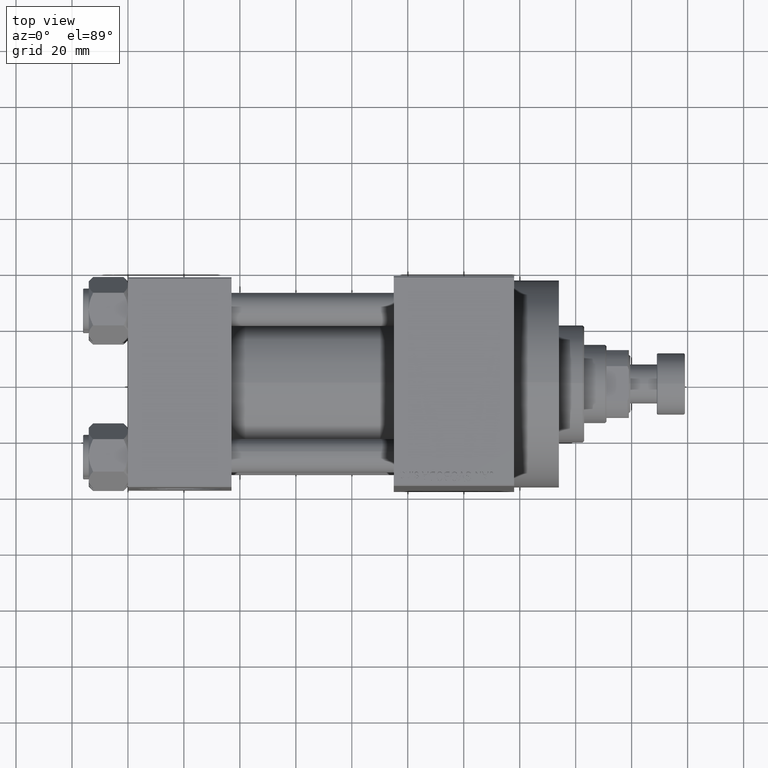
[diagram: clean part render]
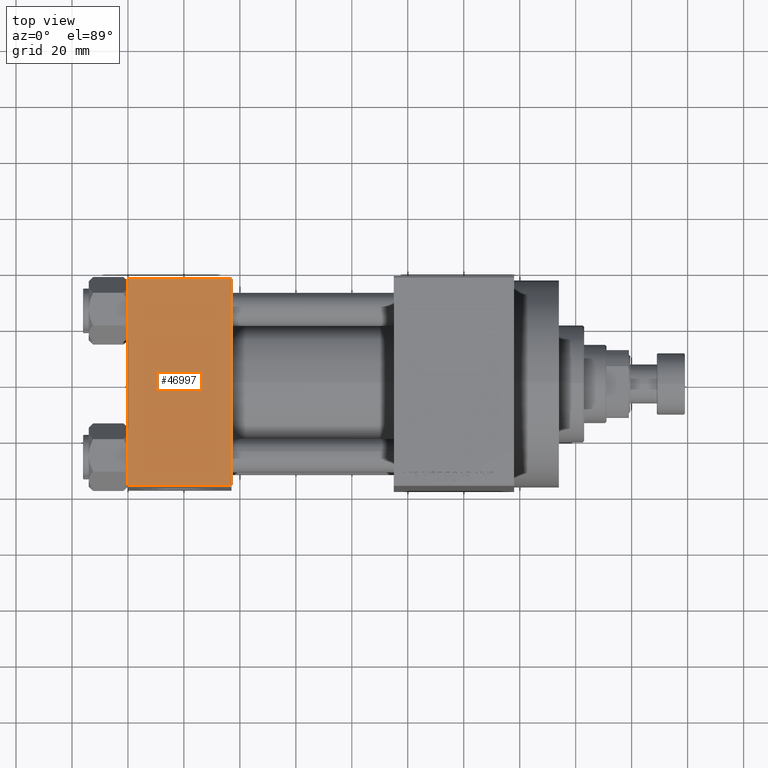
[diagram: same view with one face highlighted and labeled with its STEP entity id]
A machine part, top view. The second image highlights one B-rep face of the part: STEP entity #46997.
In plain terms, the highlighted planar face has unit normal (0, 0, -1).
Its self-contained STEP definition (entity closure, byte-faithful):
#973 = LINE ( 'NONE', #41890, #2271 ) ;
#2167 = VERTEX_POINT ( 'NONE', #7706 ) ;
#2271 = VECTOR ( 'NONE', #8000, 1000.000000000000000 ) ;
#2347 = CARTESIAN_POINT ( 'NONE',  ( 37.00000000000000000, -37.00000000000000711, 37.49999999999999289 ) ) ;
#3123 = DIRECTION ( 'NONE',  ( 0.000000000000000000, 9.251858538542971581E-17, -1.000000000000000000 ) ) ;
#3611 = VECTOR ( 'NONE', #45710, 1000.000000000000000 ) ;
#4763 = CARTESIAN_POINT ( 'NONE',  ( 37.00000000000000000, 37.49999999999999289, 37.50000000000000000 ) ) ;
#7706 = CARTESIAN_POINT ( 'NONE',  ( 0.000000000000000000, -37.00000000000000711, 37.49999999999999289 ) ) ;
#8000 = DIRECTION ( 'NONE',  ( 1.000000000000000000, 0.000000000000000000, 0.000000000000000000 ) ) ;
#9781 = CARTESIAN_POINT ( 'NONE',  ( 37.00000000000000000, 36.99999999999999289, 37.50000000000000000 ) ) ;
#10885 = AXIS2_PLACEMENT_3D ( 'NONE', #36292, #3123, #35583 ) ;
#14162 = VECTOR ( 'NONE', #23401, 1000.000000000000000 ) ;
#17878 = PLANE ( 'NONE',  #10885 ) ;
#18285 = EDGE_CURVE ( 'NONE', #2167, #19923, #973, .T. ) ;
#19673 = ORIENTED_EDGE ( 'NONE', *, *, #18285, .T. ) ;
#19923 = VERTEX_POINT ( 'NONE', #2347 ) ;
#20011 = CARTESIAN_POINT ( 'NONE',  ( 0.000000000000000000, 37.49999999999999289, 37.50000000000000000 ) ) ;
#20737 = EDGE_LOOP ( 'NONE', ( #30349, #19673, #39406, #42934 ) ) ;
#23401 = DIRECTION ( 'NONE',  ( 0.000000000000000000, -1.000000000000000000, -9.251858538542971581E-17 ) ) ;
#23417 = LINE ( 'NONE', #20011, #3611 ) ;
#24266 = LINE ( 'NONE', #35656, #25776 ) ;
#25776 = VECTOR ( 'NONE', #31784, 1000.000000000000000 ) ;
#27071 = VERTEX_POINT ( 'NONE', #9781 ) ;
#27843 = EDGE_CURVE ( 'NONE', #27071, #19923, #34546, .T. ) ;
#28289 = EDGE_CURVE ( 'NONE', #27071, #34639, #24266, .T. ) ;
#30349 = ORIENTED_EDGE ( 'NONE', *, *, #33573, .T. ) ;
#31784 = DIRECTION ( 'NONE',  ( -1.000000000000000000, 0.000000000000000000, 0.000000000000000000 ) ) ;
#33573 = EDGE_CURVE ( 'NONE', #34639, #2167, #23417, .T. ) ;
#34546 = LINE ( 'NONE', #4763, #14162 ) ;
#34639 = VERTEX_POINT ( 'NONE', #38916 ) ;
#35583 = DIRECTION ( 'NONE',  ( 0.000000000000000000, 1.000000000000000000, 9.251858538542971581E-17 ) ) ;
#35656 = CARTESIAN_POINT ( 'NONE',  ( 0.000000000000000000, 36.99999999999999289, 37.50000000000000000 ) ) ;
#36050 = FACE_OUTER_BOUND ( 'NONE', #20737, .T. ) ;
#36292 = CARTESIAN_POINT ( 'NONE',  ( 37.00000000000000000, 37.49999999999999289, 37.50000000000000000 ) ) ;
#38916 = CARTESIAN_POINT ( 'NONE',  ( 0.000000000000000000, 36.99999999999999289, 37.50000000000000000 ) ) ;
#39406 = ORIENTED_EDGE ( 'NONE', *, *, #27843, .F. ) ;
#41890 = CARTESIAN_POINT ( 'NONE',  ( 37.00000000000000000, -37.00000000000000711, 37.49999999999999289 ) ) ;
#42934 = ORIENTED_EDGE ( 'NONE', *, *, #28289, .T. ) ;
#45710 = DIRECTION ( 'NONE',  ( 0.000000000000000000, -1.000000000000000000, -9.251858538542971581E-17 ) ) ;
#46997 = ADVANCED_FACE ( 'NONE', ( #36050 ), #17878, .F. ) ;